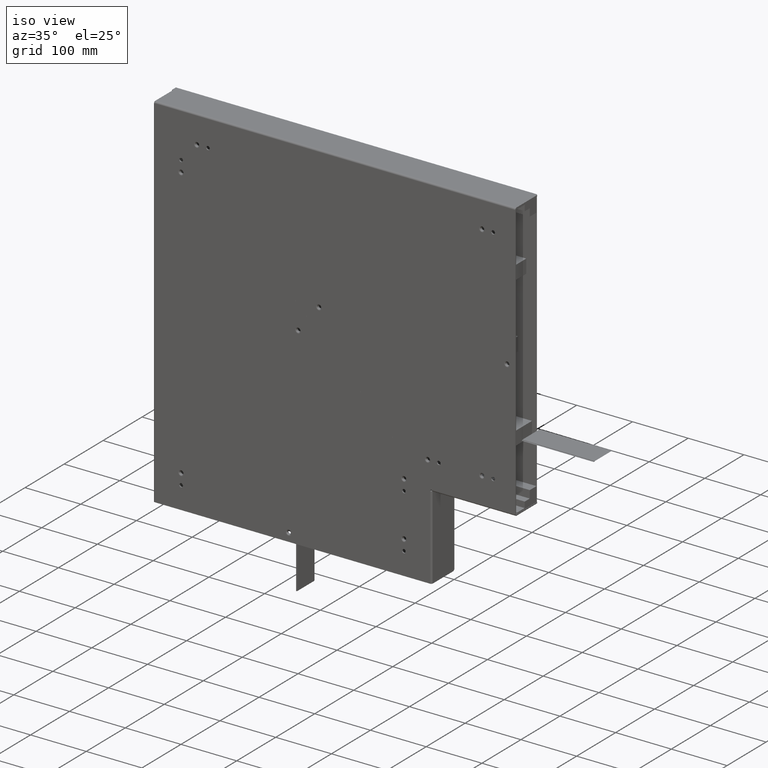
[diagram: clean part render]
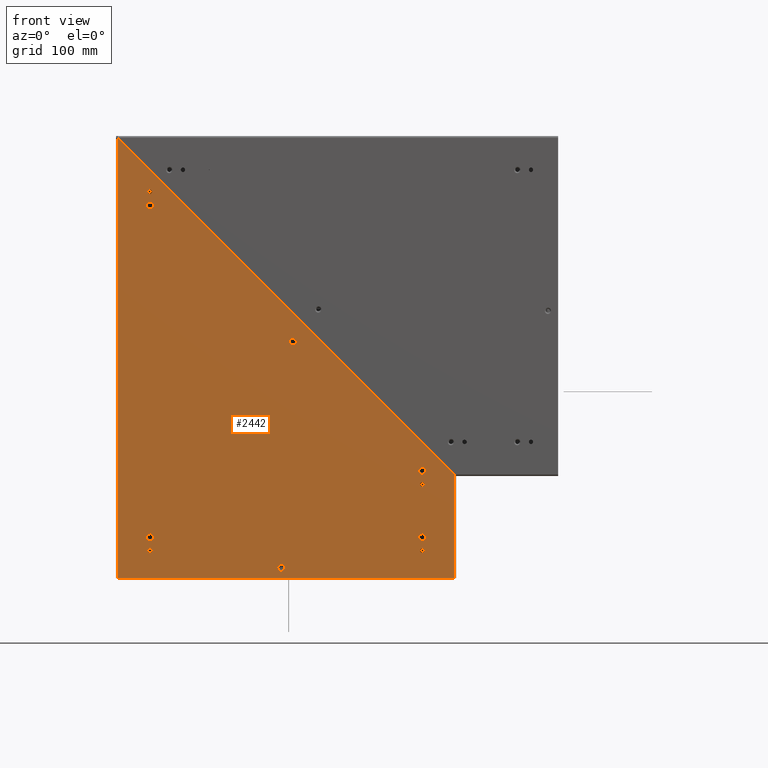
[diagram: tour spotlight — one face highlighted and labeled with its STEP entity id]
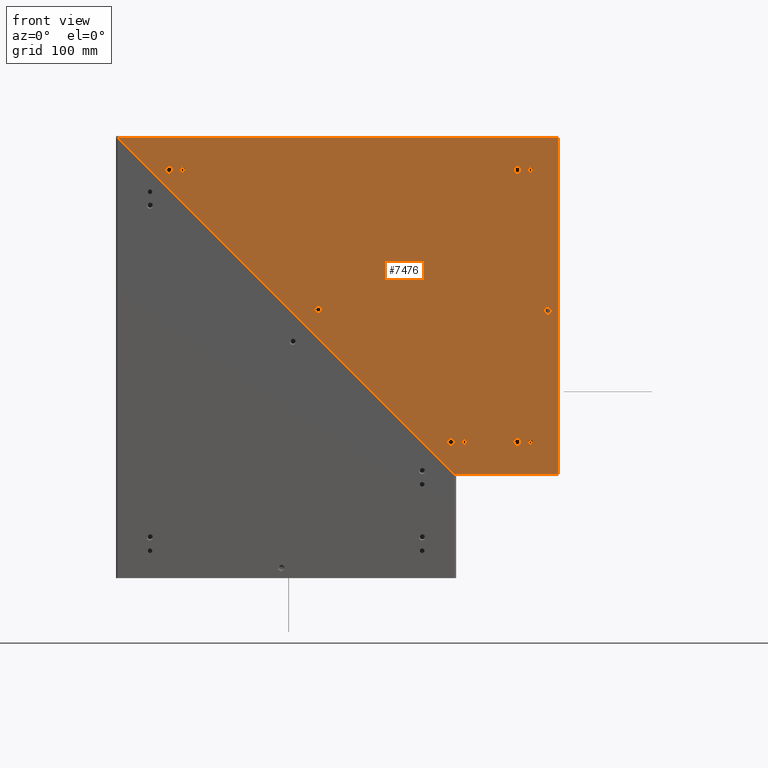
[diagram: tour spotlight — one face highlighted and labeled with its STEP entity id]
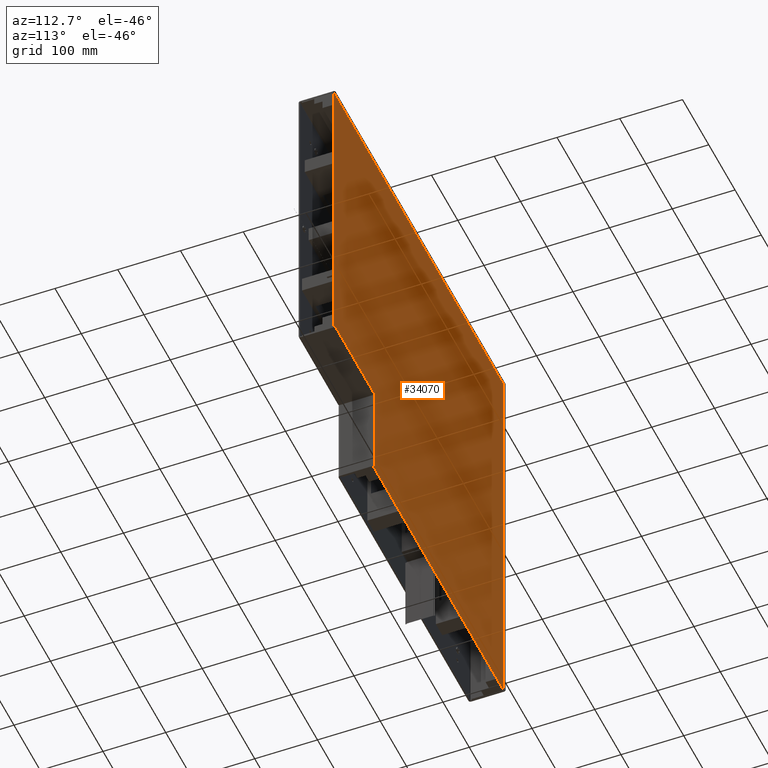
[diagram: tour spotlight — one face highlighted and labeled with its STEP entity id]
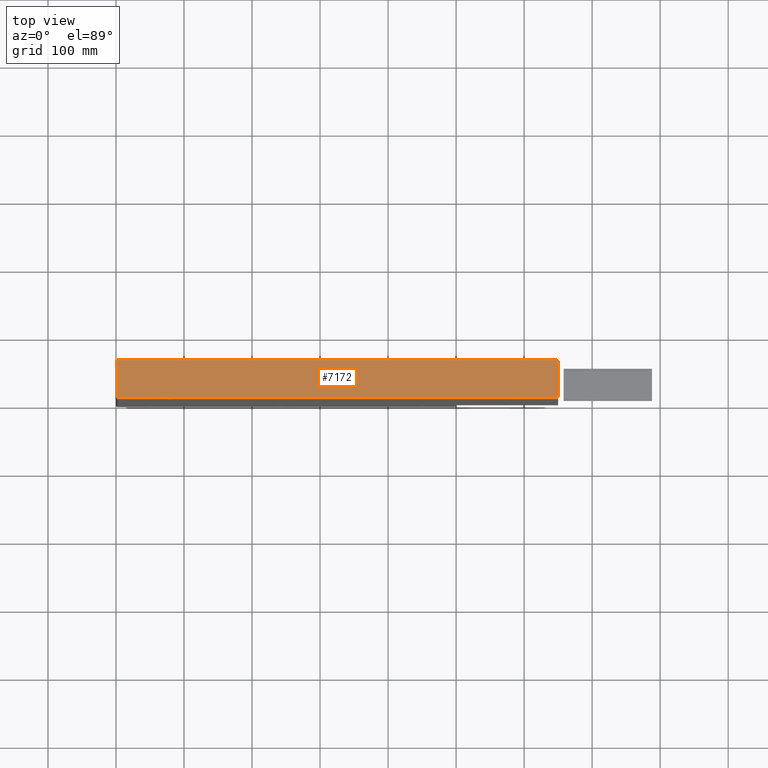
[diagram: tour spotlight — one face highlighted and labeled with its STEP entity id]
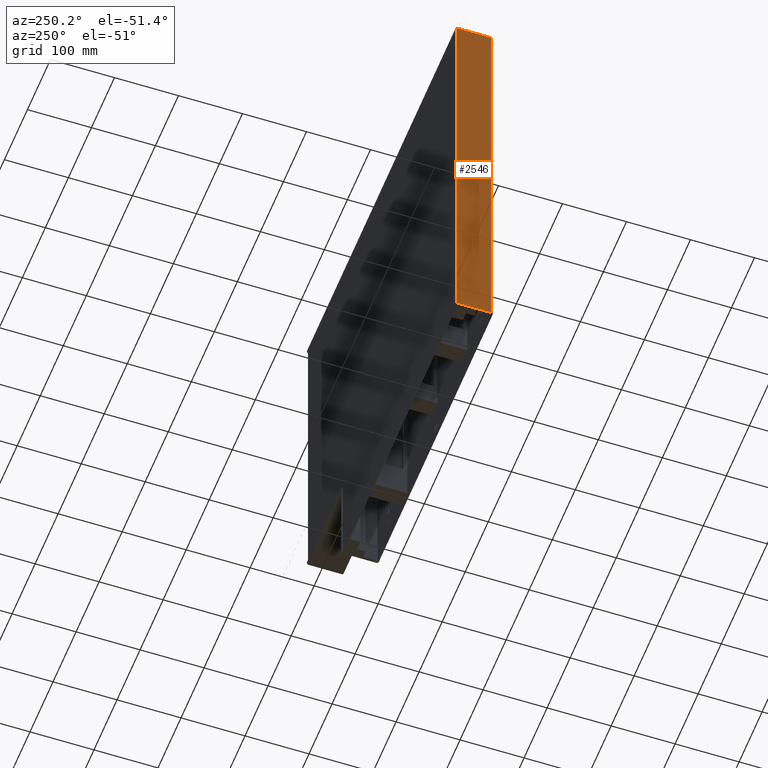
[diagram: tour spotlight — one face highlighted and labeled with its STEP entity id]
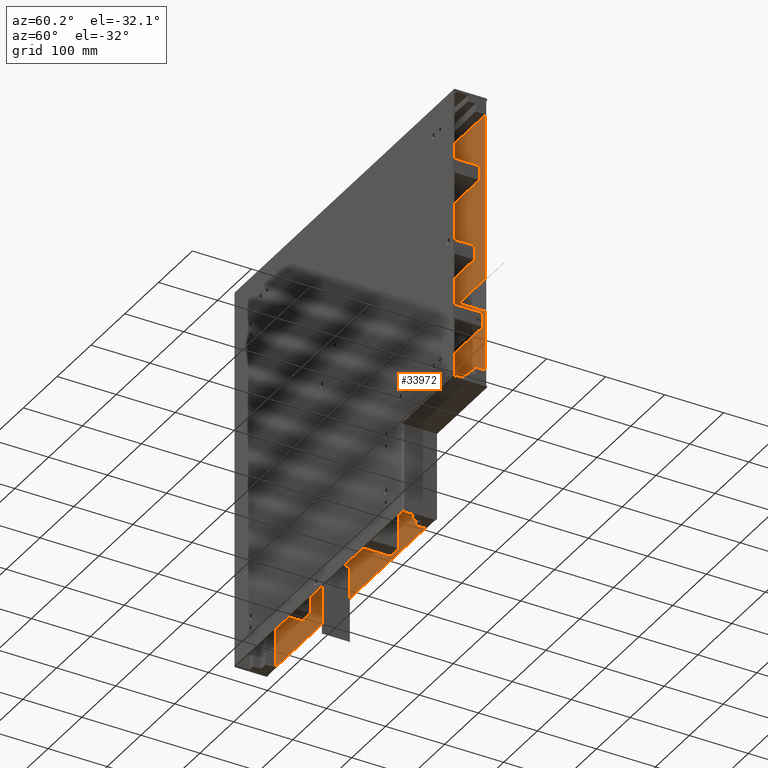
[diagram: tour spotlight — one face highlighted and labeled with its STEP entity id]
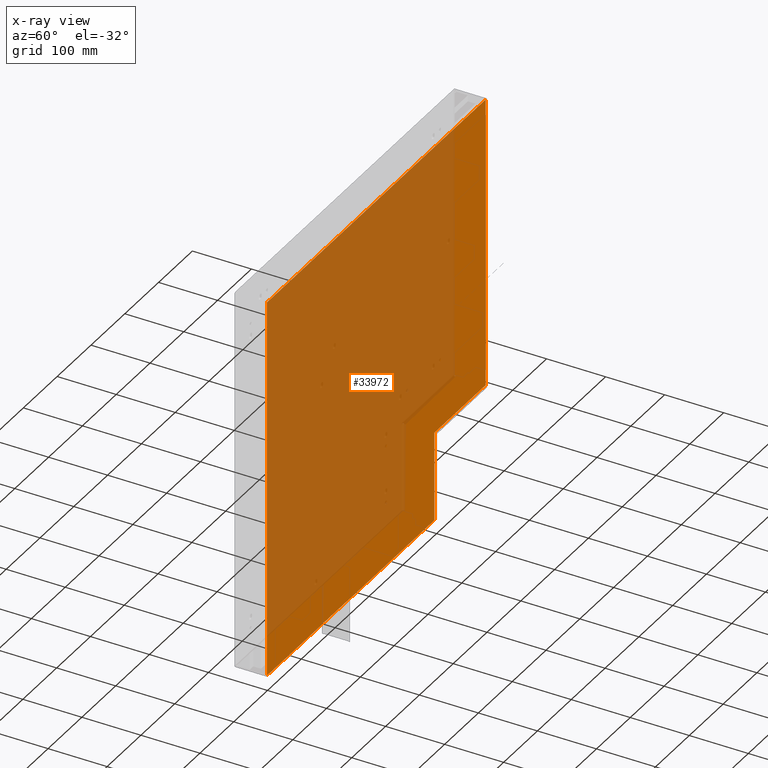
[diagram: x-ray of the same camera — body ghosted, this tour face saturated]
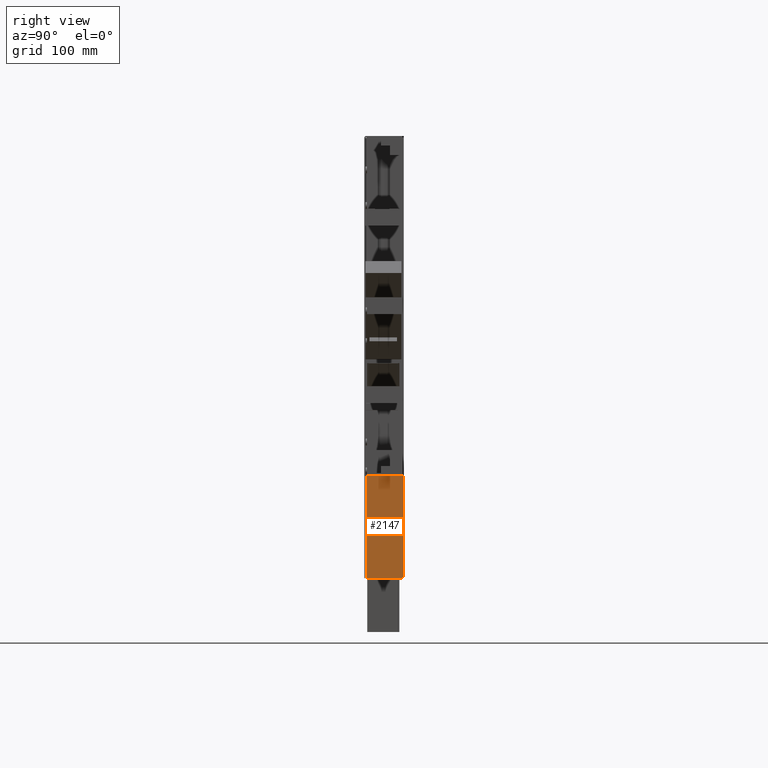
[diagram: tour spotlight — one face highlighted and labeled with its STEP entity id]
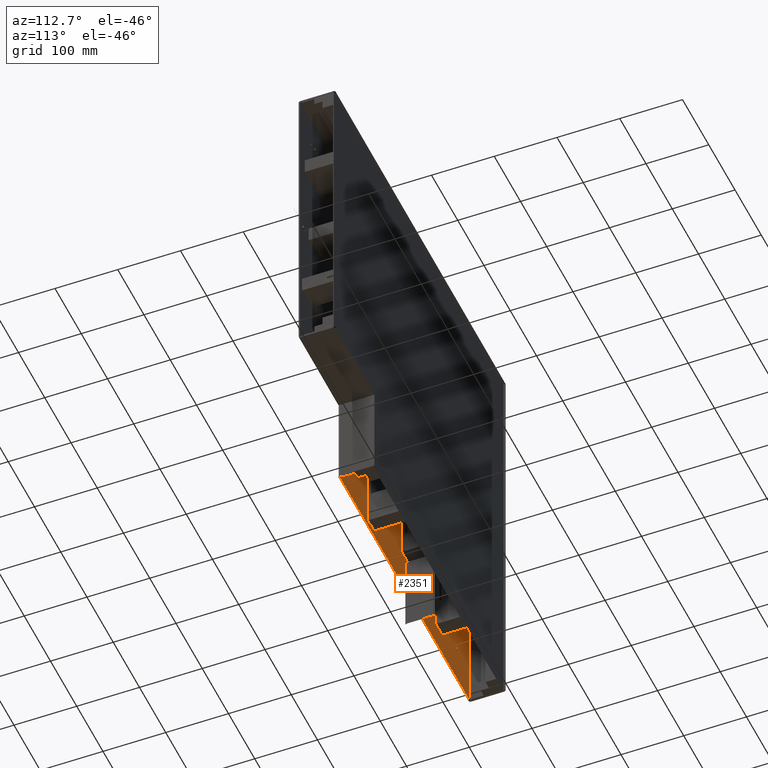
[diagram: tour spotlight — one face highlighted and labeled with its STEP entity id]
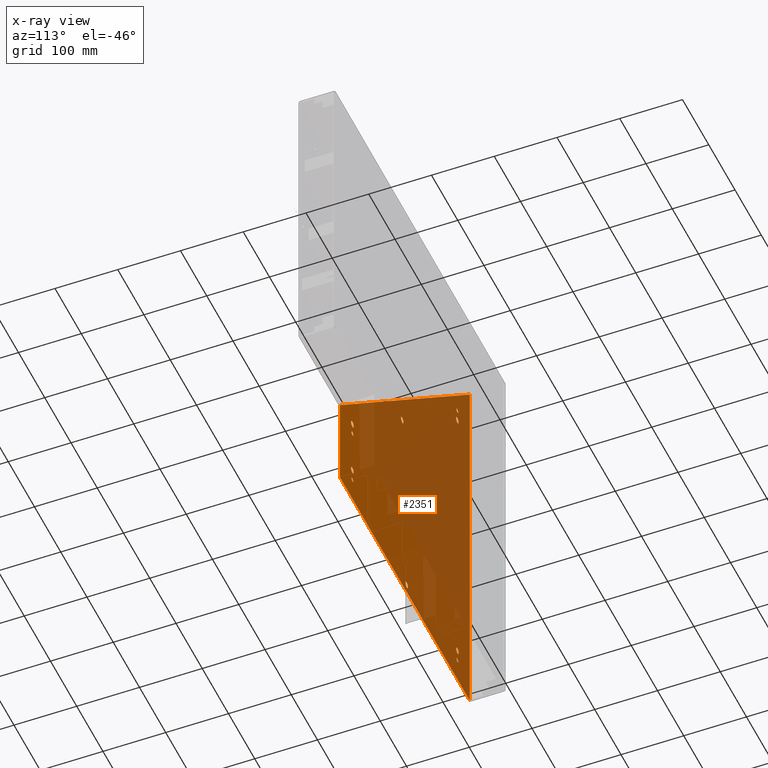
[diagram: x-ray of the same camera — body ghosted, this tour face saturated]
A machine part: a face-by-face anatomy tour. The part has 456 B-rep faces; the first image is the clean iso view, then the 8 largest visible faces are spotlighted one at a time (largest first), each with its STEP entity span.

Face 1 — front view, entity #2442. In plain terms, the highlighted planar face has unit normal (0, -1, 0).
Definition (entity closure, byte-faithful):
#302=DIRECTION('',(0.E0,0.E0,1.E0));
#303=VECTOR('',#302,1.5E2);
#304=CARTESIAN_POINT('',(2.47E2,0.E0,0.E0));
#305=LINE('',#304,#303);
#598=DIRECTION('',(7.071067811865E-1,0.E0,-7.071067811865E-1));
#599=VECTOR('',#598,6.986214998123E2);
#600=CARTESIAN_POINT('',(-2.47E2,0.E0,6.47E2));
#601=LINE('',#600,#599);
#605=DIRECTION('',(0.E0,0.E0,-1.E0));
#606=VECTOR('',#605,3.E0);
#607=CARTESIAN_POINT('',(2.47E2,0.E0,1.53E2));
#608=LINE('',#607,#606);
#612=CARTESIAN_POINT('',(2.E2,0.E0,6.E1));
#613=DIRECTION('',(0.E0,-1.E0,0.E0));
#614=DIRECTION('',(2.054153971104E-9,0.E0,-1.E0));
#615=AXIS2_PLACEMENT_3D('',#612,#613,#614);
#620=CARTESIAN_POINT('',(2.E2,0.E0,6.E1));
#621=DIRECTION('',(0.E0,-1.E0,0.E0));
#622=DIRECTION('',(-2.054153971104E-9,0.E0,1.E0));
#623=AXIS2_PLACEMENT_3D('',#620,#621,#622);
#628=CARTESIAN_POINT('',(-7.E0,0.E0,1.5E1));
#629=DIRECTION('',(0.E0,-1.E0,0.E0));
#630=DIRECTION('',(2.054154493561E-9,0.E0,-1.E0));
#631=AXIS2_PLACEMENT_3D('',#628,#629,#630);
#636=CARTESIAN_POINT('',(-7.E0,0.E0,1.5E1));
#637=DIRECTION('',(0.E0,-1.E0,0.E0));
#638=DIRECTION('',(-2.054154667714E-9,0.E0,1.E0));
#639=AXIS2_PLACEMENT_3D('',#636,#637,#638);
#644=CARTESIAN_POINT('',(-2.E2,0.E0,6.E1));
#645=DIRECTION('',(0.E0,-1.E0,0.E0));
#646=DIRECTION('',(1.E0,0.E0,2.054155364325E-9));
#647=AXIS2_PLACEMENT_3D('',#644,#645,#646);
#652=CARTESIAN_POINT('',(-2.E2,0.E0,6.E1));
#653=DIRECTION('',(0.E0,-1.E0,0.E0));
#654=DIRECTION('',(-1.E0,0.E0,-2.054155364325E-9));
#655=AXIS2_PLACEMENT_3D('',#652,#653,#654);
#660=CARTESIAN_POINT('',(-2.E2,0.E0,5.476740981922E2));
#661=DIRECTION('',(0.E0,-1.E0,0.E0));
#662=DIRECTION('',(1.E0,0.E0,2.054142825335E-9));
#663=AXIS2_PLACEMENT_3D('',#660,#661,#662);
#668=CARTESIAN_POINT('',(-2.E2,0.E0,5.476740981922E2));
#669=DIRECTION('',(0.E0,-1.E0,0.E0));
#670=DIRECTION('',(-1.E0,0.E0,-2.054142825335E-9));
#671=AXIS2_PLACEMENT_3D('',#668,#669,#670);
#676=CARTESIAN_POINT('',(1.E1,0.E0,3.475735931288E2));
#677=DIRECTION('',(0.E0,-1.E0,0.E0));
#678=DIRECTION('',(1.E0,0.E0,2.054176262640E-9));
#679=AXIS2_PLACEMENT_3D('',#676,#677,#678);
#684=CARTESIAN_POINT('',(1.E1,0.E0,3.475735931288E2));
#685=DIRECTION('',(0.E0,-1.E0,0.E0));
#686=DIRECTION('',(-1.E0,0.E0,-2.054153971104E-9));
#687=AXIS2_PLACEMENT_3D('',#684,#685,#686);
#692=CARTESIAN_POINT('',(2.E2,0.E0,1.575735931288E2));
#693=DIRECTION('',(0.E0,-1.E0,0.E0));
#694=DIRECTION('',(1.E0,0.E0,2.054153971104E-9));
#695=AXIS2_PLACEMENT_3D('',#692,#693,#694);
#700=CARTESIAN_POINT('',(2.E2,0.E0,1.575735931288E2));
#701=DIRECTION('',(0.E0,-1.E0,0.E0));
#702=DIRECTION('',(-1.E0,0.E0,-2.054148398219E-9));
#703=AXIS2_PLACEMENT_3D('',#700,#701,#702);
#708=CARTESIAN_POINT('',(-2.E2,0.E0,5.676740981922E2));
#709=DIRECTION('',(0.E0,1.E0,0.E0));
#710=DIRECTION('',(0.E0,0.E0,1.E0));
#711=AXIS2_PLACEMENT_3D('',#708,#709,#710);
#716=CARTESIAN_POINT('',(-2.E2,0.E0,5.676740981922E2));
#717=DIRECTION('',(0.E0,1.E0,0.E0));
#718=DIRECTION('',(0.E0,0.E0,-1.E0));
#719=AXIS2_PLACEMENT_3D('',#716,#717,#718);
#724=CARTESIAN_POINT('',(-2.E2,0.E0,4.E1));
#725=DIRECTION('',(0.E0,1.E0,0.E0));
#726=DIRECTION('',(0.E0,0.E0,1.E0));
#727=AXIS2_PLACEMENT_3D('',#724,#725,#726);
#732=CARTESIAN_POINT('',(-2.E2,0.E0,4.E1));
#733=DIRECTION('',(0.E0,1.E0,0.E0));
#734=DIRECTION('',(0.E0,0.E0,-1.E0));
#735=AXIS2_PLACEMENT_3D('',#732,#733,#734);
#740=CARTESIAN_POINT('',(2.E2,0.E0,4.E1));
#741=DIRECTION('',(0.E0,1.E0,0.E0));
#742=DIRECTION('',(0.E0,0.E0,1.E0));
#743=AXIS2_PLACEMENT_3D('',#740,#741,#742);
#748=CARTESIAN_POINT('',(2.E2,0.E0,4.E1));
#749=DIRECTION('',(0.E0,1.E0,0.E0));
#750=DIRECTION('',(0.E0,0.E0,-1.E0));
#751=AXIS2_PLACEMENT_3D('',#748,#749,#750);
#756=CARTESIAN_POINT('',(2.E2,0.E0,1.375735931288E2));
#757=DIRECTION('',(0.E0,1.E0,0.E0));
#758=DIRECTION('',(0.E0,0.E0,1.E0));
#759=AXIS2_PLACEMENT_3D('',#756,#757,#758);
#764=CARTESIAN_POINT('',(2.E2,0.E0,1.375735931288E2));
#765=DIRECTION('',(0.E0,1.E0,0.E0));
#766=DIRECTION('',(0.E0,0.E0,-1.E0));
#767=AXIS2_PLACEMENT_3D('',#764,#765,#766);
#793=DIRECTION('',(1.E0,0.E0,0.E0));
#794=VECTOR('',#793,4.94E2);
#795=CARTESIAN_POINT('',(-2.47E2,0.E0,0.E0));
#796=LINE('',#795,#794);
#846=DIRECTION('',(0.E0,0.E0,1.E0));
#847=VECTOR('',#846,6.47E2);
#848=CARTESIAN_POINT('',(-2.47E2,0.E0,0.E0));
#849=LINE('',#848,#847);
#1914=CARTESIAN_POINT('',(-2.47E2,0.E0,0.E0));
#1915=CARTESIAN_POINT('',(2.47E2,0.E0,0.E0));
#1916=VERTEX_POINT('',#1914);
#1917=VERTEX_POINT('',#1915);
#1926=CARTESIAN_POINT('',(2.000000000105E2,0.E0,5.49E1));
#1927=CARTESIAN_POINT('',(1.999999999895E2,0.E0,6.51E1));
#1928=VERTEX_POINT('',#1926);
#1929=VERTEX_POINT('',#1927);
#1950=CARTESIAN_POINT('',(-6.999999989524E0,0.E0,9.9E0));
#1951=CARTESIAN_POINT('',(-7.000000010476E0,0.E0,2.01E1));
#1952=VERTEX_POINT('',#1950);
#1953=VERTEX_POINT('',#1951);
#1958=CARTESIAN_POINT('',(-2.47E2,0.E0,6.47E2));
#1959=CARTESIAN_POINT('',(2.47E2,0.E0,1.53E2));
#1960=VERTEX_POINT('',#1958);
#1961=VERTEX_POINT('',#1959);
#1994=CARTESIAN_POINT('',(-1.949E2,0.E0,6.000000001048E1));
#1995=CARTESIAN_POINT('',(-2.051E2,0.E0,5.999999998952E1));
#1996=VERTEX_POINT('',#1994);
#1997=VERTEX_POINT('',#1995);
#2018=CARTESIAN_POINT('',(-1.949E2,0.E0,5.476740982027E2));
#2019=CARTESIAN_POINT('',(-2.051E2,0.E0,5.476740981817E2));
#2020=VERTEX_POINT('',#2018);
#2021=VERTEX_POINT('',#2019);
#2042=CARTESIAN_POINT('',(1.51E1,0.E0,3.475735931393E2));
#2043=CARTESIAN_POINT('',(4.9E0,0.E0,3.475735931183E2));
#2044=VERTEX_POINT('',#2042);
#2045=VERTEX_POINT('',#2043);
#2066=CARTESIAN_POINT('',(2.051E2,0.E0,1.575735931393E2));
#2067=CARTESIAN_POINT('',(1.949E2,0.E0,1.575735931183E2));
#2068=VERTEX_POINT('',#2066);
#2069=VERTEX_POINT('',#2067);
#2082=CARTESIAN_POINT('',(2.47E2,0.E0,1.5E2));
#2083=VERTEX_POINT('',#2082);
#2094=CARTESIAN_POINT('',(-2.E2,0.E0,5.709240981922E2));
#2095=CARTESIAN_POINT('',(-2.E2,0.E0,5.644240981922E2));
#2096=VERTEX_POINT('',#2094);
#2097=VERTEX_POINT('',#2095);
#2098=CARTESIAN_POINT('',(-2.E2,0.E0,4.325E1));
#2099=CARTESIAN_POINT('',(-2.E2,0.E0,3.675E1));
#2100=VERTEX_POINT('',#2098);
#2101=VERTEX_POINT('',#2099);
#2102=CARTESIAN_POINT('',(2.E2,0.E0,4.325E1));
#2103=CARTESIAN_POINT('',(2.E2,0.E0,3.675E1));
#2104=VERTEX_POINT('',#2102);
#2105=VERTEX_POINT('',#2103);
#2106=CARTESIAN_POINT('',(2.E2,0.E0,1.408235931288E2));
#2107=CARTESIAN_POINT('',(2.E2,0.E0,1.343235931288E2));
#2108=VERTEX_POINT('',#2106);
#2109=VERTEX_POINT('',#2107);
#2367=CARTESIAN_POINT('',(0.E0,0.E0,0.E0));
#2368=DIRECTION('',(0.E0,-1.E0,0.E0));
#2369=DIRECTION('',(1.E0,0.E0,0.E0));
#2370=AXIS2_PLACEMENT_3D('',#2367,#2368,#2369);
#2371=PLANE('',#2370);
#2372=ORIENTED_EDGE('',*,*,#2357,.T.);
#2374=ORIENTED_EDGE('',*,*,#2373,.T.);
#2375=ORIENTED_EDGE('',*,*,#2187,.F.);
#2377=ORIENTED_EDGE('',*,*,#2376,.F.);
#2379=ORIENTED_EDGE('',*,*,#2378,.T.);
#2380=EDGE_LOOP('',(#2372,#2374,#2375,#2377,#2379));
#2381=FACE_OUTER_BOUND('',#2380,.F.);
#2383=ORIENTED_EDGE('',*,*,#2382,.T.);
#2385=ORIENTED_EDGE('',*,*,#2384,.T.);
#2386=EDGE_LOOP('',(#2383,#2385));
#2387=FACE_BOUND('',#2386,.F.);
#2389=ORIENTED_EDGE('',*,*,#2388,.T.);
#2391=ORIENTED_EDGE('',*,*,#2390,.T.);
#2392=EDGE_LOOP('',(#2389,#2391));
#2393=FACE_BOUND('',#2392,.F.);
#2395=ORIENTED_EDGE('',*,*,#2394,.T.);
#2397=ORIENTED_EDGE('',*,*,#2396,.T.);
#2398=EDGE_LOOP('',(#2395,#2397));
#2399=FACE_BOUND('',#2398,.F.);
#2401=ORIENTED_EDGE('',*,*,#2400,.T.);
#2403=ORIENTED_EDGE('',*,*,#2402,.T.);
#2404=EDGE_LOOP('',(#2401,#2403));
#2405=FACE_BOUND('',#2404,.F.);
#2407=ORIENTED_EDGE('',*,*,#2406,.T.);
#2409=ORIENTED_EDGE('',*,*,#2408,.T.);
#2410=EDGE_LOOP('',(#2407,#2409));
#2411=FACE_BOUND('',#2410,.F.);
#2413=ORIENTED_EDGE('',*,*,#2412,.T.);
#2415=ORIENTED_EDGE('',*,*,#2414,.T.);
#2416=EDGE_LOOP('',(#2413,#2415));
#2417=FACE_BOUND('',#2416,.F.);
#2419=ORIENTED_EDGE('',*,*,#2418,.F.);
#2421=ORIENTED_EDGE('',*,*,#2420,.F.);
#2422=EDGE_LOOP('',(#2419,#2421));
#2423=FACE_BOUND('',#2422,.F.);
#2425=ORIENTED_EDGE('',*,*,#2424,.F.);
#2427=ORIENTED_EDGE('',*,*,#2426,.F.);
#2428=EDGE_LOOP('',(#2425,#2427));
#2429=FACE_BOUND('',#2428,.F.);
#2431=ORIENTED_EDGE('',*,*,#2430,.F.);
#2433=ORIENTED_EDGE('',*,*,#2432,.F.);
#2434=EDGE_LOOP('',(#2431,#2433));
#2435=FACE_BOUND('',#2434,.F.);
#2437=ORIENTED_EDGE('',*,*,#2436,.F.);
#2439=ORIENTED_EDGE('',*,*,#2438,.F.);
#2440=EDGE_LOOP('',(#2437,#2439));
#2441=FACE_BOUND('',#2440,.F.);
#616=CIRCLE('',#615,5.1E0);
#624=CIRCLE('',#623,5.1E0);
#632=CIRCLE('',#631,5.1E0);
#640=CIRCLE('',#639,5.1E0);
#648=CIRCLE('',#647,5.1E0);
#656=CIRCLE('',#655,5.1E0);
#664=CIRCLE('',#663,5.1E0);
#672=CIRCLE('',#671,5.1E0);
#680=CIRCLE('',#679,5.1E0);
#688=CIRCLE('',#687,5.1E0);
#696=CIRCLE('',#695,5.1E0);
#704=CIRCLE('',#703,5.1E0);
#712=CIRCLE('',#711,3.25E0);
#720=CIRCLE('',#719,3.25E0);
#728=CIRCLE('',#727,3.25E0);
#736=CIRCLE('',#735,3.25E0);
#744=CIRCLE('',#743,3.25E0);
#752=CIRCLE('',#751,3.25E0);
#760=CIRCLE('',#759,3.25E0);
#768=CIRCLE('',#767,3.25E0);
#2187=EDGE_CURVE('',#1917,#2083,#305,.T.);
#2357=EDGE_CURVE('',#1960,#1961,#601,.T.);
#2373=EDGE_CURVE('',#1961,#2083,#608,.T.);
#2376=EDGE_CURVE('',#1916,#1917,#796,.T.);
#2378=EDGE_CURVE('',#1916,#1960,#849,.T.);
#2382=EDGE_CURVE('',#1928,#1929,#616,.T.);
#2384=EDGE_CURVE('',#1929,#1928,#624,.T.);
#2388=EDGE_CURVE('',#1952,#1953,#632,.T.);
#2390=EDGE_CURVE('',#1953,#1952,#640,.T.);
#2394=EDGE_CURVE('',#1996,#1997,#648,.T.);
#2396=EDGE_CURVE('',#1997,#1996,#656,.T.);
#2400=EDGE_CURVE('',#2020,#2021,#664,.T.);
#2402=EDGE_CURVE('',#2021,#2020,#672,.T.);
#2406=EDGE_CURVE('',#2044,#2045,#680,.T.);
#2408=EDGE_CURVE('',#2045,#2044,#688,.T.);
#2412=EDGE_CURVE('',#2068,#2069,#696,.T.);
#2414=EDGE_CURVE('',#2069,#2068,#704,.T.);
#2418=EDGE_CURVE('',#2096,#2097,#712,.T.);
#2420=EDGE_CURVE('',#2097,#2096,#720,.T.);
#2424=EDGE_CURVE('',#2100,#2101,#728,.T.);
#2426=EDGE_CURVE('',#2101,#2100,#736,.T.);
#2430=EDGE_CURVE('',#2104,#2105,#744,.T.);
#2432=EDGE_CURVE('',#2105,#2104,#752,.T.);
#2436=EDGE_CURVE('',#2108,#2109,#760,.T.);
#2438=EDGE_CURVE('',#2109,#2108,#768,.T.);
#2442=ADVANCED_FACE('',(#2381,#2387,#2393,#2399,#2405,#2411,#2417,#2423,#2429,
#2435,#2441),#2371,.T.);

Face 2 — front view, entity #7476. In plain terms, the highlighted planar face has unit normal (0, -1, 0).
Definition (entity closure, byte-faithful):
#5026=DIRECTION('',(0.E0,0.E0,1.E0));
#5027=VECTOR('',#5026,6.47E2);
#5028=CARTESIAN_POINT('',(2.47E2,0.E0,0.E0));
#5029=LINE('',#5028,#5027);
#5213=DIRECTION('',(7.071067811865E-1,0.E0,7.071067811865E-1));
#5214=VECTOR('',#5213,6.986214998123E2);
#5215=CARTESIAN_POINT('',(-2.47E2,0.E0,1.53E2));
#5216=LINE('',#5215,#5214);
#5220=DIRECTION('',(0.E0,0.E0,1.E0));
#5221=VECTOR('',#5220,3.E0);
#5222=CARTESIAN_POINT('',(-2.47E2,0.E0,1.5E2));
#5223=LINE('',#5222,#5221);
#5227=CARTESIAN_POINT('',(2.E2,0.E0,6.E1));
#5228=DIRECTION('',(0.E0,-1.E0,0.E0));
#5229=DIRECTION('',(2.054153971104E-9,0.E0,-1.E0));
#5230=AXIS2_PLACEMENT_3D('',#5227,#5228,#5229);
#5235=CARTESIAN_POINT('',(2.E2,0.E0,6.E1));
#5236=DIRECTION('',(0.E0,-1.E0,0.E0));
#5237=DIRECTION('',(-2.054153971104E-9,0.E0,1.E0));
#5238=AXIS2_PLACEMENT_3D('',#5235,#5236,#5237);
#5243=CARTESIAN_POINT('',(-7.E0,0.E0,1.5E1));
#5244=DIRECTION('',(0.E0,-1.E0,0.E0));
#5245=DIRECTION('',(2.054154493561E-9,0.E0,-1.E0));
#5246=AXIS2_PLACEMENT_3D('',#5243,#5244,#5245);
#5251=CARTESIAN_POINT('',(-7.E0,0.E0,1.5E1));
#5252=DIRECTION('',(0.E0,-1.E0,0.E0));
#5253=DIRECTION('',(-2.054154667714E-9,0.E0,1.E0));
#5254=AXIS2_PLACEMENT_3D('',#5251,#5252,#5253);
#5259=CARTESIAN_POINT('',(-2.E2,0.E0,6.E1));
#5260=DIRECTION('',(0.E0,-1.E0,0.E0));
#5261=DIRECTION('',(1.E0,0.E0,2.054155364325E-9));
#5262=AXIS2_PLACEMENT_3D('',#5259,#5260,#5261);
#5267=CARTESIAN_POINT('',(-2.E2,0.E0,6.E1));
#5268=DIRECTION('',(0.E0,-1.E0,0.E0));
#5269=DIRECTION('',(-1.E0,0.E0,-2.054155364325E-9));
#5270=AXIS2_PLACEMENT_3D('',#5267,#5268,#5269);
#5275=CARTESIAN_POINT('',(-2.E2,0.E0,1.575735931288E2));
#5276=DIRECTION('',(0.E0,-1.E0,0.E0));
#5277=DIRECTION('',(1.E0,0.E0,2.054153971104E-9));
#5278=AXIS2_PLACEMENT_3D('',#5275,#5276,#5277);
#5283=CARTESIAN_POINT('',(-2.E2,0.E0,1.575735931288E2));
#5284=DIRECTION('',(0.E0,-1.E0,0.E0));
#5285=DIRECTION('',(-1.E0,0.E0,-2.054148398219E-9));
#5286=AXIS2_PLACEMENT_3D('',#5283,#5284,#5285);
#5291=CARTESIAN_POINT('',(-5.E0,0.E0,3.525735931288E2));
#5292=DIRECTION('',(0.E0,-1.E0,0.E0));
#5293=DIRECTION('',(1.E0,0.E0,2.054165116872E-9));
#5294=AXIS2_PLACEMENT_3D('',#5291,#5292,#5293);
#5299=CARTESIAN_POINT('',(-5.E0,0.E0,3.525735931288E2));
#5300=DIRECTION('',(0.E0,-1.E0,0.E0));
#5301=DIRECTION('',(-1.E0,0.E0,-2.054153971104E-9));
#5302=AXIS2_PLACEMENT_3D('',#5299,#5300,#5301);
#5307=CARTESIAN_POINT('',(2.E2,0.E0,5.717157287525E2));
#5308=DIRECTION('',(0.E0,-1.E0,0.E0));
#5309=DIRECTION('',(1.E0,0.E0,2.054142825335E-9));
#5310=AXIS2_PLACEMENT_3D('',#5307,#5308,#5309);
#5315=CARTESIAN_POINT('',(2.E2,0.E0,5.717157287525E2));
#5316=DIRECTION('',(0.E0,-1.E0,0.E0));
#5317=DIRECTION('',(-1.E0,0.E0,-2.054142825335E-9));
#5318=AXIS2_PLACEMENT_3D('',#5315,#5316,#5317);
#5323=CARTESIAN_POINT('',(2.E2,0.E0,5.517157287525E2));
#5324=DIRECTION('',(0.E0,1.E0,0.E0));
#5325=DIRECTION('',(0.E0,0.E0,1.E0));
#5326=AXIS2_PLACEMENT_3D('',#5323,#5324,#5325);
#5331=CARTESIAN_POINT('',(2.E2,0.E0,5.517157287525E2));
#5332=DIRECTION('',(0.E0,1.E0,0.E0));
#5333=DIRECTION('',(0.E0,0.E0,-1.E0));
#5334=AXIS2_PLACEMENT_3D('',#5331,#5332,#5333);
#5339=CARTESIAN_POINT('',(2.E2,0.E0,4.E1));
#5340=DIRECTION('',(0.E0,1.E0,0.E0));
#5341=DIRECTION('',(0.E0,0.E0,1.E0));
#5342=AXIS2_PLACEMENT_3D('',#5339,#5340,#5341);
#5347=CARTESIAN_POINT('',(2.E2,0.E0,4.E1));
#5348=DIRECTION('',(0.E0,1.E0,0.E0));
#5349=DIRECTION('',(0.E0,0.E0,-1.E0));
#5350=AXIS2_PLACEMENT_3D('',#5347,#5348,#5349);
#5355=CARTESIAN_POINT('',(-2.E2,0.E0,4.E1));
#5356=DIRECTION('',(0.E0,1.E0,0.E0));
#5357=DIRECTION('',(0.E0,0.E0,1.E0));
#5358=AXIS2_PLACEMENT_3D('',#5355,#5356,#5357);
#5363=CARTESIAN_POINT('',(-2.E2,0.E0,4.E1));
#5364=DIRECTION('',(0.E0,1.E0,0.E0));
#5365=DIRECTION('',(0.E0,0.E0,-1.E0));
#5366=AXIS2_PLACEMENT_3D('',#5363,#5364,#5365);
#5371=CARTESIAN_POINT('',(-2.E2,0.E0,1.375735931288E2));
#5372=DIRECTION('',(0.E0,1.E0,0.E0));
#5373=DIRECTION('',(0.E0,0.E0,1.E0));
#5374=AXIS2_PLACEMENT_3D('',#5371,#5372,#5373);
#5379=CARTESIAN_POINT('',(-2.E2,0.E0,1.375735931288E2));
#5380=DIRECTION('',(0.E0,1.E0,0.E0));
#5381=DIRECTION('',(0.E0,0.E0,-1.E0));
#5382=AXIS2_PLACEMENT_3D('',#5379,#5380,#5381);
#5387=CARTESIAN_POINT('',(2.E2,0.E0,9.3E1));
#5388=DIRECTION('',(0.E0,1.E0,0.E0));
#5389=DIRECTION('',(0.E0,0.E0,-1.E0));
#5390=AXIS2_PLACEMENT_3D('',#5387,#5388,#5389);
#5395=CARTESIAN_POINT('',(2.E2,0.E0,9.3E1));
#5396=DIRECTION('',(0.E0,1.E0,0.E0));
#5397=DIRECTION('',(0.E0,0.E0,1.E0));
#5398=AXIS2_PLACEMENT_3D('',#5395,#5396,#5397);
#5403=CARTESIAN_POINT('',(2.E2,0.E0,5.13E2));
#5404=DIRECTION('',(0.E0,1.E0,0.E0));
#5405=DIRECTION('',(0.E0,0.E0,-1.E0));
#5406=AXIS2_PLACEMENT_3D('',#5403,#5404,#5405);
#5411=CARTESIAN_POINT('',(2.E2,0.E0,5.13E2));
#5412=DIRECTION('',(0.E0,1.E0,0.E0));
#5413=DIRECTION('',(0.E0,0.E0,1.E0));
#5414=AXIS2_PLACEMENT_3D('',#5411,#5412,#5413);
#5419=CARTESIAN_POINT('',(-2.5E1,0.E0,3.255025253169E2));
#5420=DIRECTION('',(0.E0,1.E0,0.E0));
#5421=DIRECTION('',(0.E0,0.E0,-1.E0));
#5422=AXIS2_PLACEMENT_3D('',#5419,#5420,#5421);
#5427=CARTESIAN_POINT('',(-2.5E1,0.E0,3.255025253169E2));
#5428=DIRECTION('',(0.E0,1.E0,0.E0));
#5429=DIRECTION('',(0.E0,0.E0,1.E0));
#5430=AXIS2_PLACEMENT_3D('',#5427,#5428,#5429);
#5435=CARTESIAN_POINT('',(-2.E2,0.E0,9.3E1));
#5436=DIRECTION('',(0.E0,1.E0,0.E0));
#5437=DIRECTION('',(0.E0,0.E0,-1.E0));
#5438=AXIS2_PLACEMENT_3D('',#5435,#5436,#5437);
#5443=CARTESIAN_POINT('',(-2.E2,0.E0,9.3E1));
#5444=DIRECTION('',(0.E0,1.E0,0.E0));
#5445=DIRECTION('',(0.E0,0.E0,1.E0));
#5446=AXIS2_PLACEMENT_3D('',#5443,#5444,#5445);
#5465=DIRECTION('',(1.E0,0.E0,0.E0));
#5466=VECTOR('',#5465,4.94E2);
#5467=CARTESIAN_POINT('',(-2.47E2,0.E0,0.E0));
#5468=LINE('',#5467,#5466);
#5739=DIRECTION('',(0.E0,0.E0,1.E0));
#5740=VECTOR('',#5739,1.5E2);
#5741=CARTESIAN_POINT('',(-2.47E2,0.E0,0.E0));
#5742=LINE('',#5741,#5740);
#6885=CARTESIAN_POINT('',(-2.47E2,0.E0,0.E0));
#6886=CARTESIAN_POINT('',(2.47E2,0.E0,0.E0));
#6887=VERTEX_POINT('',#6885);
#6888=VERTEX_POINT('',#6886);
#6897=CARTESIAN_POINT('',(2.000000000105E2,0.E0,5.49E1));
#6898=CARTESIAN_POINT('',(1.999999999895E2,0.E0,6.51E1));
#6899=VERTEX_POINT('',#6897);
#6900=VERTEX_POINT('',#6898);
#6921=CARTESIAN_POINT('',(-6.999999989524E0,0.E0,9.9E0));
#6922=CARTESIAN_POINT('',(-7.000000010476E0,0.E0,2.01E1));
#6923=VERTEX_POINT('',#6921);
#6924=VERTEX_POINT('',#6922);
#6929=CARTESIAN_POINT('',(-2.47E2,0.E0,1.53E2));
#6930=CARTESIAN_POINT('',(2.47E2,0.E0,6.47E2));
#6931=VERTEX_POINT('',#6929);
#6932=VERTEX_POINT('',#6930);
#6953=CARTESIAN_POINT('',(-1.949E2,0.E0,6.000000001048E1));
#6954=CARTESIAN_POINT('',(-2.051E2,0.E0,5.999999998952E1));
#6955=VERTEX_POINT('',#6953);
#6956=VERTEX_POINT('',#6954);
#6977=CARTESIAN_POINT('',(-1.949E2,0.E0,1.575735931393E2));
#6978=CARTESIAN_POINT('',(-2.051E2,0.E0,1.575735931183E2));
#6979=VERTEX_POINT('',#6977);
#6980=VERTEX_POINT('',#6978);
#7001=CARTESIAN_POINT('',(1.E-1,0.E0,3.525735931393E2));
#7002=CARTESIAN_POINT('',(-1.01E1,0.E0,3.525735931183E2));
#7003=VERTEX_POINT('',#7001);
#7004=VERTEX_POINT('',#7002);
#7025=CARTESIAN_POINT('',(2.051E2,0.E0,5.717157287630E2));
#7026=CARTESIAN_POINT('',(1.949E2,0.E0,5.717157287421E2));
#7027=VERTEX_POINT('',#7025);
#7028=VERTEX_POINT('',#7026);
#7041=CARTESIAN_POINT('',(-2.47E2,0.E0,1.5E2));
#7042=VERTEX_POINT('',#7041);
#7061=CARTESIAN_POINT('',(2.E2,0.E0,5.549657287525E2));
#7062=CARTESIAN_POINT('',(2.E2,0.E0,5.484657287525E2));
#7063=VERTEX_POINT('',#7061);
#7064=VERTEX_POINT('',#7062);
#7065=CARTESIAN_POINT('',(2.E2,0.E0,4.325E1));
#7066=CARTESIAN_POINT('',(2.E2,0.E0,3.675E1));
#7067=VERTEX_POINT('',#7065);
#7068=VERTEX_POINT('',#7066);
#7069=CARTESIAN_POINT('',(-2.E2,0.E0,4.325E1));
#7070=CARTESIAN_POINT('',(-2.E2,0.E0,3.675E1));
#7071=VERTEX_POINT('',#7069);
#7072=VERTEX_POINT('',#7070);
#7073=CARTESIAN_POINT('',(-2.E2,0.E0,1.408235931288E2));
#7074=CARTESIAN_POINT('',(-2.E2,0.E0,1.343235931288E2));
#7075=VERTEX_POINT('',#7073);
#7076=VERTEX_POINT('',#7074);
#7117=CARTESIAN_POINT('',(2.E2,0.E0,9.295E1));
#7118=CARTESIAN_POINT('',(2.E2,0.E0,9.305E1));
#7119=VERTEX_POINT('',#7117);
#7120=VERTEX_POINT('',#7118);
#7121=CARTESIAN_POINT('',(2.E2,0.E0,5.1295E2));
#7122=CARTESIAN_POINT('',(2.E2,0.E0,5.1305E2));
#7123=VERTEX_POINT('',#7121);
#7124=VERTEX_POINT('',#7122);
#7125=CARTESIAN_POINT('',(-2.5E1,0.E0,3.254525253169E2));
#7126=CARTESIAN_POINT('',(-2.5E1,0.E0,3.255525253169E2));
#7127=VERTEX_POINT('',#7125);
#7128=VERTEX_POINT('',#7126);
#7129=CARTESIAN_POINT('',(-2.E2,0.E0,9.295E1));
#7130=CARTESIAN_POINT('',(-2.E2,0.E0,9.305E1));
#7131=VERTEX_POINT('',#7129);
#7132=VERTEX_POINT('',#7130);
#7377=CARTESIAN_POINT('',(0.E0,0.E0,0.E0));
#7378=DIRECTION('',(0.E0,-1.E0,0.E0));
#7379=DIRECTION('',(1.E0,0.E0,0.E0));
#7380=AXIS2_PLACEMENT_3D('',#7377,#7378,#7379);
#7381=PLANE('',#7380);
#7382=ORIENTED_EDGE('',*,*,#7367,.T.);
#7383=ORIENTED_EDGE('',*,*,#7212,.F.);
#7385=ORIENTED_EDGE('',*,*,#7384,.F.);
#7387=ORIENTED_EDGE('',*,*,#7386,.T.);
#7389=ORIENTED_EDGE('',*,*,#7388,.T.);
#7390=EDGE_LOOP('',(#7382,#7383,#7385,#7387,#7389));
#7391=FACE_OUTER_BOUND('',#7390,.F.);
#7393=ORIENTED_EDGE('',*,*,#7392,.T.);
#7395=ORIENTED_EDGE('',*,*,#7394,.T.);
#7396=EDGE_LOOP('',(#7393,#7395));
#7397=FACE_BOUND('',#7396,.F.);
#7399=ORIENTED_EDGE('',*,*,#7398,.T.);
#7401=ORIENTED_EDGE('',*,*,#7400,.T.);
#7402=EDGE_LOOP('',(#7399,#7401));
#7403=FACE_BOUND('',#7402,.F.);
#7405=ORIENTED_EDGE('',*,*,#7404,.T.);
#7407=ORIENTED_EDGE('',*,*,#7406,.T.);
#7408=EDGE_LOOP('',(#7405,#7407));
#7409=FACE_BOUND('',#7408,.F.);
#7411=ORIENTED_EDGE('',*,*,#7410,.T.);
#7413=ORIENTED_EDGE('',*,*,#7412,.T.);
#7414=EDGE_LOOP('',(#7411,#7413));
#7415=FACE_BOUND('',#7414,.F.);
#7417=ORIENTED_EDGE('',*,*,#7416,.T.);
#7419=ORIENTED_EDGE('',*,*,#7418,.T.);
#7420=EDGE_LOOP('',(#7417,#7419));
#7421=FACE_BOUND('',#7420,.F.);
#7423=ORIENTED_EDGE('',*,*,#7422,.T.);
#7425=ORIENTED_EDGE('',*,*,#7424,.T.);
#7426=EDGE_LOOP('',(#7423,#7425));
#7427=FACE_BOUND('',#7426,.F.);
#7429=ORIENTED_EDGE('',*,*,#7428,.F.);
#7431=ORIENTED_EDGE('',*,*,#7430,.F.);
#7432=EDGE_LOOP('',(#7429,#7431));
#7433=FACE_BOUND('',#7432,.F.);
#7435=ORIENTED_EDGE('',*,*,#7434,.F.);
#7437=ORIENTED_EDGE('',*,*,#7436,.F.);
#7438=EDGE_LOOP('',(#7435,#7437));
#7439=FACE_BOUND('',#7438,.F.);
#7441=ORIENTED_EDGE('',*,*,#7440,.F.);
#7443=ORIENTED_EDGE('',*,*,#7442,.F.);
#7444=EDGE_LOOP('',(#7441,#7443));
#7445=FACE_BOUND('',#7444,.F.);
#7447=ORIENTED_EDGE('',*,*,#7446,.F.);
#7449=ORIENTED_EDGE('',*,*,#7448,.F.);
#7450=EDGE_LOOP('',(#7447,#7449));
#7451=FACE_BOUND('',#7450,.F.);
#7453=ORIENTED_EDGE('',*,*,#7452,.F.);
#7455=ORIENTED_EDGE('',*,*,#7454,.F.);
#7456=EDGE_LOOP('',(#7453,#7455));
#7457=FACE_BOUND('',#7456,.F.);
#7459=ORIENTED_EDGE('',*,*,#7458,.F.);
#7461=ORIENTED_EDGE('',*,*,#7460,.F.);
#7462=EDGE_LOOP('',(#7459,#7461));
#7463=FACE_BOUND('',#7462,.F.);
#7465=ORIENTED_EDGE('',*,*,#7464,.F.);
#7467=ORIENTED_EDGE('',*,*,#7466,.F.);
#7468=EDGE_LOOP('',(#7465,#7467));
#7469=FACE_BOUND('',#7468,.F.);
#7471=ORIENTED_EDGE('',*,*,#7470,.F.);
#7473=ORIENTED_EDGE('',*,*,#7472,.F.);
#7474=EDGE_LOOP('',(#7471,#7473));
#7475=FACE_BOUND('',#7474,.F.);
#5231=CIRCLE('',#5230,5.1E0);
#5239=CIRCLE('',#5238,5.1E0);
#5247=CIRCLE('',#5246,5.1E0);
#5255=CIRCLE('',#5254,5.1E0);
#5263=CIRCLE('',#5262,5.1E0);
#5271=CIRCLE('',#5270,5.1E0);
#5279=CIRCLE('',#5278,5.1E0);
#5287=CIRCLE('',#5286,5.1E0);
#5295=CIRCLE('',#5294,5.1E0);
#5303=CIRCLE('',#5302,5.1E0);
#5311=CIRCLE('',#5310,5.1E0);
#5319=CIRCLE('',#5318,5.1E0);
#5327=CIRCLE('',#5326,3.25E0);
#5335=CIRCLE('',#5334,3.25E0);
#5343=CIRCLE('',#5342,3.25E0);
#5351=CIRCLE('',#5350,3.25E0);
#5359=CIRCLE('',#5358,3.25E0);
#5367=CIRCLE('',#5366,3.25E0);
#5375=CIRCLE('',#5374,3.25E0);
#5383=CIRCLE('',#5382,3.25E0);
#5391=CIRCLE('',#5390,5.E-2);
#5399=CIRCLE('',#5398,5.E-2);
#5407=CIRCLE('',#5406,5.E-2);
#5415=CIRCLE('',#5414,5.E-2);
#5423=CIRCLE('',#5422,5.E-2);
#5431=CIRCLE('',#5430,5.E-2);
#5439=CIRCLE('',#5438,5.E-2);
#5447=CIRCLE('',#5446,5.E-2);
#7212=EDGE_CURVE('',#6888,#6932,#5029,.T.);
#7367=EDGE_CURVE('',#6931,#6932,#5216,.T.);
#7384=EDGE_CURVE('',#6887,#6888,#5468,.T.);
#7386=EDGE_CURVE('',#6887,#7042,#5742,.T.);
#7388=EDGE_CURVE('',#7042,#6931,#5223,.T.);
#7392=EDGE_CURVE('',#6899,#6900,#5231,.T.);
#7394=EDGE_CURVE('',#6900,#6899,#5239,.T.);
#7398=EDGE_CURVE('',#6923,#6924,#5247,.T.);
#7400=EDGE_CURVE('',#6924,#6923,#5255,.T.);
#7404=EDGE_CURVE('',#6955,#6956,#5263,.T.);
#7406=EDGE_CURVE('',#6956,#6955,#5271,.T.);
#7410=EDGE_CURVE('',#6979,#6980,#5279,.T.);
#7412=EDGE_CURVE('',#6980,#6979,#5287,.T.);
#7416=EDGE_CURVE('',#7003,#7004,#5295,.T.);
#7418=EDGE_CURVE('',#7004,#7003,#5303,.T.);
#7422=EDGE_CURVE('',#7027,#7028,#5311,.T.);
#7424=EDGE_CURVE('',#7028,#7027,#5319,.T.);
#7428=EDGE_CURVE('',#7063,#7064,#5327,.T.);
#7430=EDGE_CURVE('',#7064,#7063,#5335,.T.);
#7434=EDGE_CURVE('',#7067,#7068,#5343,.T.);
#7436=EDGE_CURVE('',#7068,#7067,#5351,.T.);
#7440=EDGE_CURVE('',#7071,#7072,#5359,.T.);
#7442=EDGE_CURVE('',#7072,#7071,#5367,.T.);
#7446=EDGE_CURVE('',#7075,#7076,#5375,.T.);
#7448=EDGE_CURVE('',#7076,#7075,#5383,.T.);
#7452=EDGE_CURVE('',#7119,#7120,#5391,.T.);
#7454=EDGE_CURVE('',#7120,#7119,#5399,.T.);
#7458=EDGE_CURVE('',#7123,#7124,#5407,.T.);
#7460=EDGE_CURVE('',#7124,#7123,#5415,.T.);
#7464=EDGE_CURVE('',#7127,#7128,#5423,.T.);
#7466=EDGE_CURVE('',#7128,#7127,#5431,.T.);
#7470=EDGE_CURVE('',#7131,#7132,#5439,.T.);
#7472=EDGE_CURVE('',#7132,#7131,#5447,.T.);
#7476=ADVANCED_FACE('',(#7391,#7397,#7403,#7409,#7415,#7421,#7427,#7433,#7439,
#7445,#7451,#7457,#7463,#7469,#7475),#7381,.T.);

Face 3 — auxiliary view, entity #34070. In plain terms, the highlighted planar face has unit normal (0, 1, 0).
Definition (entity closure, byte-faithful):
#33887=DIRECTION('',(1.E0,0.E0,0.E0));
#33888=VECTOR('',#33887,6.473E2);
#33889=CARTESIAN_POINT('',(-3.995E2,-2.478E2,1.E0));
#33890=LINE('',#33889,#33888);
#33894=DIRECTION('',(0.E0,-1.E0,0.E0));
#33895=VECTOR('',#33894,4.956E2);
#33896=CARTESIAN_POINT('',(-3.995E2,2.478E2,1.E0));
#33897=LINE('',#33896,#33895);
#33901=DIRECTION('',(-1.E0,0.E0,0.E0));
#33902=VECTOR('',#33901,1.517E2);
#33903=CARTESIAN_POINT('',(-2.478E2,2.478E2,1.E0));
#33904=LINE('',#33903,#33902);
#33908=DIRECTION('',(0.E0,-1.E0,0.E0));
#33909=VECTOR('',#33908,1.517E2);
#33910=CARTESIAN_POINT('',(-2.478E2,3.995E2,1.E0));
#33911=LINE('',#33910,#33909);
#33915=DIRECTION('',(-1.E0,0.E0,0.E0));
#33916=VECTOR('',#33915,4.956E2);
#33917=CARTESIAN_POINT('',(2.478E2,3.995E2,1.E0));
#33918=LINE('',#33917,#33916);
#33922=DIRECTION('',(0.E0,1.E0,0.E0));
#33923=VECTOR('',#33922,6.473E2);
#33924=CARTESIAN_POINT('',(2.478E2,-2.478E2,1.E0));
#33925=LINE('',#33924,#33923);
#33939=CARTESIAN_POINT('',(-3.995E2,-2.478E2,1.E0));
#33940=CARTESIAN_POINT('',(2.478E2,-2.478E2,1.E0));
#33941=VERTEX_POINT('',#33939);
#33942=VERTEX_POINT('',#33940);
#33943=CARTESIAN_POINT('',(2.478E2,3.995E2,1.E0));
#33944=VERTEX_POINT('',#33943);
#33945=CARTESIAN_POINT('',(-2.478E2,3.995E2,1.E0));
#33946=VERTEX_POINT('',#33945);
#33947=CARTESIAN_POINT('',(-3.995E2,2.478E2,1.E0));
#33948=VERTEX_POINT('',#33947);
#33951=CARTESIAN_POINT('',(-2.478E2,2.478E2,1.E0));
#33952=VERTEX_POINT('',#33951);
#34057=CARTESIAN_POINT('',(0.E0,0.E0,1.E0));
#34058=DIRECTION('',(0.E0,0.E0,1.E0));
#34059=DIRECTION('',(1.E0,0.E0,0.E0));
#34060=AXIS2_PLACEMENT_3D('',#34057,#34058,#34059);
#34061=PLANE('',#34060);
#34062=ORIENTED_EDGE('',*,*,#33981,.F.);
#34063=ORIENTED_EDGE('',*,*,#33996,.F.);
#34064=ORIENTED_EDGE('',*,*,#34010,.F.);
#34065=ORIENTED_EDGE('',*,*,#34024,.F.);
#34066=ORIENTED_EDGE('',*,*,#34038,.F.);
#34067=ORIENTED_EDGE('',*,*,#34051,.F.);
#34068=EDGE_LOOP('',(#34062,#34063,#34064,#34065,#34066,#34067));
#34069=FACE_OUTER_BOUND('',#34068,.F.);
#33981=EDGE_CURVE('',#33941,#33942,#33890,.T.);
#33996=EDGE_CURVE('',#33948,#33941,#33897,.T.);
#34010=EDGE_CURVE('',#33952,#33948,#33904,.T.);
#34024=EDGE_CURVE('',#33946,#33952,#33911,.T.);
#34038=EDGE_CURVE('',#33944,#33946,#33918,.T.);
#34051=EDGE_CURVE('',#33942,#33944,#33925,.T.);
#34070=ADVANCED_FACE('',(#34069),#34061,.T.);

Face 4 — top view, entity #7172. In plain terms, the highlighted planar face has unit normal (0, 0, 1).
Definition (entity closure, byte-faithful):
#4962=DIRECTION('',(-2.842170943041E-14,5.195843755246E-14,1.E0));
#4963=VECTOR('',#4962,9.999999999999E-1);
#4964=CARTESIAN_POINT('',(2.5E2,3.E0,6.47E2));
#4965=LINE('',#4964,#4963);
#4969=DIRECTION('',(0.E0,1.E0,0.E0));
#4970=VECTOR('',#4969,4.5E1);
#4971=CARTESIAN_POINT('',(2.5E2,3.E0,6.48E2));
#4972=LINE('',#4971,#4970);
#4976=DIRECTION('',(1.578983857245E-14,0.E0,-1.E0));
#4977=VECTOR('',#4976,1.8E0);
#4978=CARTESIAN_POINT('',(2.5E2,4.8E1,6.498E2));
#4979=LINE('',#4978,#4977);
#4983=DIRECTION('',(-1.136868377216E-14,-1.E0,0.E0));
#4984=VECTOR('',#4983,1.E1);
#4985=CARTESIAN_POINT('',(2.5E2,5.8E1,6.498E2));
#4986=LINE('',#4985,#4984);
#4990=DIRECTION('',(0.E0,7.071067811865E-1,7.071067811866E-1));
#4991=VECTOR('',#4990,2.828427124746E0);
#4992=CARTESIAN_POINT('',(2.5E2,5.6E1,0.E0));
#4993=LINE('',#4992,#4991);
#4997=DIRECTION('',(0.E0,0.E0,1.E0));
#4998=VECTOR('',#4997,6.47E2);
#4999=CARTESIAN_POINT('',(2.5E2,3.E0,0.E0));
#5000=LINE('',#4999,#4998);
#5078=DIRECTION('',(0.E0,1.E0,0.E0));
#5079=VECTOR('',#5078,5.3E1);
#5080=CARTESIAN_POINT('',(2.5E2,3.E0,0.E0));
#5081=LINE('',#5080,#5079);
#5085=DIRECTION('',(0.E0,0.E0,1.E0));
#5086=VECTOR('',#5085,6.478E2);
#5087=CARTESIAN_POINT('',(2.5E2,5.8E1,2.E0));
#5088=LINE('',#5087,#5086);
#6857=CARTESIAN_POINT('',(2.5E2,5.6E1,0.E0));
#6858=CARTESIAN_POINT('',(2.5E2,5.8E1,2.E0));
#6859=VERTEX_POINT('',#6857);
#6860=VERTEX_POINT('',#6858);
#6865=CARTESIAN_POINT('',(2.5E2,3.E0,0.E0));
#6866=VERTEX_POINT('',#6865);
#7045=CARTESIAN_POINT('',(2.5E2,3.E0,6.47E2));
#7046=CARTESIAN_POINT('',(2.5E2,3.E0,6.48E2));
#7047=VERTEX_POINT('',#7045);
#7048=VERTEX_POINT('',#7046);
#7105=CARTESIAN_POINT('',(2.5E2,5.8E1,6.498E2));
#7106=CARTESIAN_POINT('',(2.5E2,4.8E1,6.498E2));
#7107=VERTEX_POINT('',#7105);
#7108=VERTEX_POINT('',#7106);
#7109=CARTESIAN_POINT('',(2.5E2,4.8E1,6.48E2));
#7110=VERTEX_POINT('',#7109);
#7149=CARTESIAN_POINT('',(2.5E2,3.E0,0.E0));
#7150=DIRECTION('',(1.E0,0.E0,0.E0));
#7151=DIRECTION('',(0.E0,1.E0,0.E0));
#7152=AXIS2_PLACEMENT_3D('',#7149,#7150,#7151);
#7153=PLANE('',#7152);
#7155=ORIENTED_EDGE('',*,*,#7154,.T.);
#7157=ORIENTED_EDGE('',*,*,#7156,.T.);
#7159=ORIENTED_EDGE('',*,*,#7158,.F.);
#7161=ORIENTED_EDGE('',*,*,#7160,.F.);
#7163=ORIENTED_EDGE('',*,*,#7162,.F.);
#7165=ORIENTED_EDGE('',*,*,#7164,.F.);
#7167=ORIENTED_EDGE('',*,*,#7166,.F.);
#7169=ORIENTED_EDGE('',*,*,#7168,.T.);
#7170=EDGE_LOOP('',(#7155,#7157,#7159,#7161,#7163,#7165,#7167,#7169));
#7171=FACE_OUTER_BOUND('',#7170,.F.);
#7154=EDGE_CURVE('',#7047,#7048,#4965,.T.);
#7156=EDGE_CURVE('',#7048,#7110,#4972,.T.);
#7158=EDGE_CURVE('',#7108,#7110,#4979,.T.);
#7160=EDGE_CURVE('',#7107,#7108,#4986,.T.);
#7162=EDGE_CURVE('',#6860,#7107,#5088,.T.);
#7164=EDGE_CURVE('',#6859,#6860,#4993,.T.);
#7166=EDGE_CURVE('',#6866,#6859,#5081,.T.);
#7168=EDGE_CURVE('',#6866,#7047,#5000,.T.);
#7172=ADVANCED_FACE('',(#7171),#7153,.T.);

Face 5 — auxiliary view, entity #2546. In plain terms, the highlighted planar face has unit normal (1, 0, 0).
Definition (entity closure, byte-faithful):
#867=DIRECTION('',(2.842170943040E-14,-2.398081733190E-14,-1.E0));
#868=VECTOR('',#867,1.E0);
#869=CARTESIAN_POINT('',(-2.5E2,3.E0,6.48E2));
#870=LINE('',#869,#868);
#874=DIRECTION('',(0.E0,0.E0,1.E0));
#875=VECTOR('',#874,6.47E2);
#876=CARTESIAN_POINT('',(-2.5E2,3.E0,0.E0));
#877=LINE('',#876,#875);
#881=DIRECTION('',(-1.004859173558E-14,7.071067811865E-1,7.071067811865E-1));
#882=VECTOR('',#881,2.828427124746E0);
#883=CARTESIAN_POINT('',(-2.5E2,5.6E1,0.E0));
#884=LINE('',#883,#882);
#888=DIRECTION('',(0.E0,1.E0,0.E0));
#889=VECTOR('',#888,5.5E1);
#890=CARTESIAN_POINT('',(-2.5E2,3.E0,6.48E2));
#891=LINE('',#890,#889);
#902=DIRECTION('',(0.E0,1.E0,0.E0));
#903=VECTOR('',#902,5.3E1);
#904=CARTESIAN_POINT('',(-2.5E2,3.E0,0.E0));
#905=LINE('',#904,#903);
#951=DIRECTION('',(0.E0,0.E0,1.E0));
#952=VECTOR('',#951,6.46E2);
#953=CARTESIAN_POINT('',(-2.5E2,5.8E1,2.E0));
#954=LINE('',#953,#952);
#1898=CARTESIAN_POINT('',(-2.5E2,5.6E1,0.E0));
#1899=CARTESIAN_POINT('',(-2.5E2,5.8E1,2.E0));
#1900=VERTEX_POINT('',#1898);
#1901=VERTEX_POINT('',#1899);
#1906=CARTESIAN_POINT('',(-2.5E2,3.E0,0.E0));
#1907=VERTEX_POINT('',#1906);
#1966=CARTESIAN_POINT('',(-2.5E2,5.8E1,6.48E2));
#1967=VERTEX_POINT('',#1966);
#2086=CARTESIAN_POINT('',(-2.5E2,3.E0,6.48E2));
#2087=CARTESIAN_POINT('',(-2.5E2,3.E0,6.47E2));
#2088=VERTEX_POINT('',#2086);
#2089=VERTEX_POINT('',#2087);
#2529=CARTESIAN_POINT('',(-2.5E2,3.E0,0.E0));
#2530=DIRECTION('',(1.E0,0.E0,0.E0));
#2531=DIRECTION('',(0.E0,1.E0,0.E0));
#2532=AXIS2_PLACEMENT_3D('',#2529,#2530,#2531);
#2533=PLANE('',#2532);
#2534=ORIENTED_EDGE('',*,*,#2519,.T.);
#2535=ORIENTED_EDGE('',*,*,#2494,.F.);
#2537=ORIENTED_EDGE('',*,*,#2536,.T.);
#2539=ORIENTED_EDGE('',*,*,#2538,.T.);
#2541=ORIENTED_EDGE('',*,*,#2540,.T.);
#2543=ORIENTED_EDGE('',*,*,#2542,.F.);
#2544=EDGE_LOOP('',(#2534,#2535,#2537,#2539,#2541,#2543));
#2545=FACE_OUTER_BOUND('',#2544,.F.);
#2494=EDGE_CURVE('',#1907,#2089,#877,.T.);
#2519=EDGE_CURVE('',#2088,#2089,#870,.T.);
#2536=EDGE_CURVE('',#1907,#1900,#905,.T.);
#2538=EDGE_CURVE('',#1900,#1901,#884,.T.);
#2540=EDGE_CURVE('',#1901,#1967,#954,.T.);
#2542=EDGE_CURVE('',#2088,#1967,#891,.T.);
#2546=ADVANCED_FACE('',(#2545),#2533,.F.);

Face 6 — auxiliary view, entity #33972. An x-ray twin of the same camera follows (body ghosted, this face saturated) — the face is partly hidden behind the body. In plain terms, the highlighted planar face has unit normal (0, 1, 0).
Definition (entity closure, byte-faithful):
#33803=DIRECTION('',(1.E0,0.E0,0.E0));
#33804=VECTOR('',#33803,6.473E2);
#33805=CARTESIAN_POINT('',(-3.995E2,-2.478E2,0.E0));
#33806=LINE('',#33805,#33804);
#33810=DIRECTION('',(0.E0,1.E0,0.E0));
#33811=VECTOR('',#33810,6.473E2);
#33812=CARTESIAN_POINT('',(2.478E2,-2.478E2,0.E0));
#33813=LINE('',#33812,#33811);
#33817=DIRECTION('',(-1.E0,0.E0,0.E0));
#33818=VECTOR('',#33817,4.956E2);
#33819=CARTESIAN_POINT('',(2.478E2,3.995E2,0.E0));
#33820=LINE('',#33819,#33818);
#33824=DIRECTION('',(0.E0,-1.E0,0.E0));
#33825=VECTOR('',#33824,1.517E2);
#33826=CARTESIAN_POINT('',(-2.478E2,3.995E2,0.E0));
#33827=LINE('',#33826,#33825);
#33831=DIRECTION('',(-1.E0,0.E0,0.E0));
#33832=VECTOR('',#33831,1.517E2);
#33833=CARTESIAN_POINT('',(-2.478E2,2.478E2,0.E0));
#33834=LINE('',#33833,#33832);
#33838=DIRECTION('',(0.E0,-1.E0,0.E0));
#33839=VECTOR('',#33838,4.956E2);
#33840=CARTESIAN_POINT('',(-3.995E2,2.478E2,0.E0));
#33841=LINE('',#33840,#33839);
#33929=CARTESIAN_POINT('',(-3.995E2,-2.478E2,0.E0));
#33930=CARTESIAN_POINT('',(2.478E2,-2.478E2,0.E0));
#33931=VERTEX_POINT('',#33929);
#33932=VERTEX_POINT('',#33930);
#33933=CARTESIAN_POINT('',(2.478E2,3.995E2,0.E0));
#33934=VERTEX_POINT('',#33933);
#33935=CARTESIAN_POINT('',(-2.478E2,3.995E2,0.E0));
#33936=VERTEX_POINT('',#33935);
#33937=CARTESIAN_POINT('',(-3.995E2,2.478E2,0.E0));
#33938=VERTEX_POINT('',#33937);
#33949=CARTESIAN_POINT('',(-2.478E2,2.478E2,0.E0));
#33950=VERTEX_POINT('',#33949);
#33953=CARTESIAN_POINT('',(0.E0,0.E0,0.E0));
#33954=DIRECTION('',(0.E0,0.E0,1.E0));
#33955=DIRECTION('',(1.E0,0.E0,0.E0));
#33956=AXIS2_PLACEMENT_3D('',#33953,#33954,#33955);
#33957=PLANE('',#33956);
#33959=ORIENTED_EDGE('',*,*,#33958,.T.);
#33961=ORIENTED_EDGE('',*,*,#33960,.T.);
#33963=ORIENTED_EDGE('',*,*,#33962,.T.);
#33965=ORIENTED_EDGE('',*,*,#33964,.T.);
#33967=ORIENTED_EDGE('',*,*,#33966,.T.);
#33969=ORIENTED_EDGE('',*,*,#33968,.T.);
#33970=EDGE_LOOP('',(#33959,#33961,#33963,#33965,#33967,#33969));
#33971=FACE_OUTER_BOUND('',#33970,.F.);
#33958=EDGE_CURVE('',#33931,#33932,#33806,.T.);
#33960=EDGE_CURVE('',#33932,#33934,#33813,.T.);
#33962=EDGE_CURVE('',#33934,#33936,#33820,.T.);
#33964=EDGE_CURVE('',#33936,#33950,#33827,.T.);
#33966=EDGE_CURVE('',#33950,#33938,#33834,.T.);
#33968=EDGE_CURVE('',#33938,#33931,#33841,.T.);
#33972=ADVANCED_FACE('',(#33971),#33957,.F.);

Face 7 — right view, entity #2147. In plain terms, the highlighted planar face has unit normal (1, 0, 0).
Definition (entity closure, byte-faithful):
#259=DIRECTION('',(0.E0,1.E0,0.E0));
#260=VECTOR('',#259,5.5E1);
#261=CARTESIAN_POINT('',(2.5E2,3.E0,1.5E2));
#262=LINE('',#261,#260);
#266=DIRECTION('',(-1.004859173558E-14,7.071067811865E-1,7.071067811866E-1));
#267=VECTOR('',#266,2.828427124746E0);
#268=CARTESIAN_POINT('',(2.5E2,5.6E1,0.E0));
#269=LINE('',#268,#267);
#273=DIRECTION('',(0.E0,0.E0,1.E0));
#274=VECTOR('',#273,1.5E2);
#275=CARTESIAN_POINT('',(2.5E2,3.E0,0.E0));
#276=LINE('',#275,#274);
#346=DIRECTION('',(0.E0,1.E0,0.E0));
#347=VECTOR('',#346,5.3E1);
#348=CARTESIAN_POINT('',(2.5E2,3.E0,0.E0));
#349=LINE('',#348,#347);
#374=DIRECTION('',(0.E0,0.E0,1.E0));
#375=VECTOR('',#374,1.48E2);
#376=CARTESIAN_POINT('',(2.5E2,5.8E1,2.E0));
#377=LINE('',#376,#375);
#1886=CARTESIAN_POINT('',(2.5E2,5.6E1,0.E0));
#1887=CARTESIAN_POINT('',(2.5E2,5.8E1,2.E0));
#1888=VERTEX_POINT('',#1886);
#1889=VERTEX_POINT('',#1887);
#1894=CARTESIAN_POINT('',(2.5E2,3.E0,0.E0));
#1895=VERTEX_POINT('',#1894);
#1962=CARTESIAN_POINT('',(2.5E2,3.E0,1.5E2));
#1963=CARTESIAN_POINT('',(2.5E2,5.8E1,1.5E2));
#1964=VERTEX_POINT('',#1962);
#1965=VERTEX_POINT('',#1963);
#2130=CARTESIAN_POINT('',(2.5E2,3.E0,0.E0));
#2131=DIRECTION('',(1.E0,0.E0,0.E0));
#2132=DIRECTION('',(0.E0,1.E0,0.E0));
#2133=AXIS2_PLACEMENT_3D('',#2130,#2131,#2132);
#2134=PLANE('',#2133);
#2136=ORIENTED_EDGE('',*,*,#2135,.T.);
#2138=ORIENTED_EDGE('',*,*,#2137,.F.);
#2140=ORIENTED_EDGE('',*,*,#2139,.F.);
#2142=ORIENTED_EDGE('',*,*,#2141,.F.);
#2144=ORIENTED_EDGE('',*,*,#2143,.T.);
#2145=EDGE_LOOP('',(#2136,#2138,#2140,#2142,#2144));
#2146=FACE_OUTER_BOUND('',#2145,.F.);
#2135=EDGE_CURVE('',#1964,#1965,#262,.T.);
#2137=EDGE_CURVE('',#1889,#1965,#377,.T.);
#2139=EDGE_CURVE('',#1888,#1889,#269,.T.);
#2141=EDGE_CURVE('',#1895,#1888,#349,.T.);
#2143=EDGE_CURVE('',#1895,#1964,#276,.T.);
#2147=ADVANCED_FACE('',(#2146),#2134,.T.);

Face 8 — auxiliary view, entity #2351. An x-ray twin of the same camera follows (body ghosted, this face saturated) — the face is partly hidden behind the body. In plain terms, the highlighted planar face has unit normal (0, -1, 0).
Definition (entity closure, byte-faithful):
#410=DIRECTION('',(0.E0,0.E0,1.E0));
#411=VECTOR('',#410,1.5E2);
#412=CARTESIAN_POINT('',(2.47E2,2.E0,0.E0));
#413=LINE('',#412,#411);
#417=DIRECTION('',(7.071067811865E-1,0.E0,-7.071067811865E-1));
#418=VECTOR('',#417,6.986214998123E2);
#419=CARTESIAN_POINT('',(-2.47E2,2.E0,6.47E2));
#420=LINE('',#419,#418);
#424=DIRECTION('',(0.E0,0.E0,-1.E0));
#425=VECTOR('',#424,3.E0);
#426=CARTESIAN_POINT('',(2.47E2,2.E0,1.53E2));
#427=LINE('',#426,#425);
#431=CARTESIAN_POINT('',(2.E2,2.E0,6.E1));
#432=DIRECTION('',(0.E0,-1.E0,0.E0));
#433=DIRECTION('',(2.054153971104E-9,0.E0,-1.E0));
#434=AXIS2_PLACEMENT_3D('',#431,#432,#433);
#439=CARTESIAN_POINT('',(2.E2,2.E0,6.E1));
#440=DIRECTION('',(0.E0,-1.E0,0.E0));
#441=DIRECTION('',(-2.054153971104E-9,0.E0,1.E0));
#442=AXIS2_PLACEMENT_3D('',#439,#440,#441);
#447=CARTESIAN_POINT('',(-7.E0,2.E0,1.5E1));
#448=DIRECTION('',(0.E0,-1.E0,0.E0));
#449=DIRECTION('',(2.054154493561E-9,0.E0,-1.E0));
#450=AXIS2_PLACEMENT_3D('',#447,#448,#449);
#455=CARTESIAN_POINT('',(-7.E0,2.E0,1.5E1));
#456=DIRECTION('',(0.E0,-1.E0,0.E0));
#457=DIRECTION('',(-2.054154667714E-9,0.E0,1.E0));
#458=AXIS2_PLACEMENT_3D('',#455,#456,#457);
#463=CARTESIAN_POINT('',(-2.E2,2.E0,6.E1));
#464=DIRECTION('',(0.E0,-1.E0,0.E0));
#465=DIRECTION('',(1.E0,0.E0,2.054155364325E-9));
#466=AXIS2_PLACEMENT_3D('',#463,#464,#465);
#471=CARTESIAN_POINT('',(-2.E2,2.E0,6.E1));
#472=DIRECTION('',(0.E0,-1.E0,0.E0));
#473=DIRECTION('',(-1.E0,0.E0,-2.054155364325E-9));
#474=AXIS2_PLACEMENT_3D('',#471,#472,#473);
#479=CARTESIAN_POINT('',(-2.E2,2.E0,5.476740981922E2));
#480=DIRECTION('',(0.E0,-1.E0,0.E0));
#481=DIRECTION('',(1.E0,0.E0,2.054142825335E-9));
#482=AXIS2_PLACEMENT_3D('',#479,#480,#481);
#487=CARTESIAN_POINT('',(-2.E2,2.E0,5.476740981922E2));
#488=DIRECTION('',(0.E0,-1.E0,0.E0));
#489=DIRECTION('',(-1.E0,0.E0,-2.054142825335E-9));
#490=AXIS2_PLACEMENT_3D('',#487,#488,#489);
#495=CARTESIAN_POINT('',(1.E1,2.E0,3.475735931288E2));
#496=DIRECTION('',(0.E0,-1.E0,0.E0));
#497=DIRECTION('',(1.E0,0.E0,2.054176262640E-9));
#498=AXIS2_PLACEMENT_3D('',#495,#496,#497);
#503=CARTESIAN_POINT('',(1.E1,2.E0,3.475735931288E2));
#504=DIRECTION('',(0.E0,-1.E0,0.E0));
#505=DIRECTION('',(-1.E0,0.E0,-2.054153971104E-9));
#506=AXIS2_PLACEMENT_3D('',#503,#504,#505);
#511=CARTESIAN_POINT('',(2.E2,2.E0,1.575735931288E2));
#512=DIRECTION('',(0.E0,-1.E0,0.E0));
#513=DIRECTION('',(1.E0,0.E0,2.054153971104E-9));
#514=AXIS2_PLACEMENT_3D('',#511,#512,#513);
#519=CARTESIAN_POINT('',(2.E2,2.E0,1.575735931288E2));
#520=DIRECTION('',(0.E0,-1.E0,0.E0));
#521=DIRECTION('',(-1.E0,0.E0,-2.054148398219E-9));
#522=AXIS2_PLACEMENT_3D('',#519,#520,#521);
#527=CARTESIAN_POINT('',(2.E2,2.E0,1.375735931288E2));
#528=DIRECTION('',(0.E0,1.E0,0.E0));
#529=DIRECTION('',(0.E0,0.E0,1.E0));
#530=AXIS2_PLACEMENT_3D('',#527,#528,#529);
#535=CARTESIAN_POINT('',(2.E2,2.E0,1.375735931288E2));
#536=DIRECTION('',(0.E0,1.E0,0.E0));
#537=DIRECTION('',(0.E0,0.E0,-1.E0));
#538=AXIS2_PLACEMENT_3D('',#535,#536,#537);
#543=CARTESIAN_POINT('',(2.E2,2.E0,4.E1));
#544=DIRECTION('',(0.E0,1.E0,0.E0));
#545=DIRECTION('',(0.E0,0.E0,1.E0));
#546=AXIS2_PLACEMENT_3D('',#543,#544,#545);
#551=CARTESIAN_POINT('',(2.E2,2.E0,4.E1));
#552=DIRECTION('',(0.E0,1.E0,0.E0));
#553=DIRECTION('',(0.E0,0.E0,-1.E0));
#554=AXIS2_PLACEMENT_3D('',#551,#552,#553);
#559=CARTESIAN_POINT('',(-2.E2,2.E0,4.E1));
#560=DIRECTION('',(0.E0,1.E0,0.E0));
#561=DIRECTION('',(0.E0,0.E0,1.E0));
#562=AXIS2_PLACEMENT_3D('',#559,#560,#561);
#567=CARTESIAN_POINT('',(-2.E2,2.E0,4.E1));
#568=DIRECTION('',(0.E0,1.E0,0.E0));
#569=DIRECTION('',(0.E0,0.E0,-1.E0));
#570=AXIS2_PLACEMENT_3D('',#567,#568,#569);
#575=CARTESIAN_POINT('',(-2.E2,2.E0,5.676740981922E2));
#576=DIRECTION('',(0.E0,1.E0,0.E0));
#577=DIRECTION('',(0.E0,0.E0,1.E0));
#578=AXIS2_PLACEMENT_3D('',#575,#576,#577);
#583=CARTESIAN_POINT('',(-2.E2,2.E0,5.676740981922E2));
#584=DIRECTION('',(0.E0,1.E0,0.E0));
#585=DIRECTION('',(0.E0,0.E0,-1.E0));
#586=AXIS2_PLACEMENT_3D('',#583,#584,#585);
#779=DIRECTION('',(-1.E0,0.E0,0.E0));
#780=VECTOR('',#779,4.94E2);
#781=CARTESIAN_POINT('',(2.47E2,2.E0,0.E0));
#782=LINE('',#781,#780);
#980=DIRECTION('',(0.E0,0.E0,1.E0));
#981=VECTOR('',#980,6.47E2);
#982=CARTESIAN_POINT('',(-2.47E2,2.E0,0.E0));
#983=LINE('',#982,#981);
#1910=CARTESIAN_POINT('',(2.47E2,2.E0,0.E0));
#1911=CARTESIAN_POINT('',(-2.47E2,2.E0,0.E0));
#1912=VERTEX_POINT('',#1910);
#1913=VERTEX_POINT('',#1911);
#1938=CARTESIAN_POINT('',(2.000000000105E2,2.E0,5.49E1));
#1939=CARTESIAN_POINT('',(1.999999999895E2,2.E0,6.51E1));
#1940=VERTEX_POINT('',#1938);
#1941=VERTEX_POINT('',#1939);
#1954=CARTESIAN_POINT('',(-6.999999989524E0,2.E0,9.9E0));
#1955=CARTESIAN_POINT('',(-7.000000010476E0,2.E0,2.01E1));
#1956=VERTEX_POINT('',#1954);
#1957=VERTEX_POINT('',#1955);
#1968=CARTESIAN_POINT('',(-2.47E2,2.E0,6.47E2));
#1969=CARTESIAN_POINT('',(2.47E2,2.E0,1.53E2));
#1970=VERTEX_POINT('',#1968);
#1971=VERTEX_POINT('',#1969);
#2006=CARTESIAN_POINT('',(-1.949E2,2.E0,6.000000001048E1));
#2007=CARTESIAN_POINT('',(-2.051E2,2.E0,5.999999998952E1));
#2008=VERTEX_POINT('',#2006);
#2009=VERTEX_POINT('',#2007);
#2030=CARTESIAN_POINT('',(-1.949E2,2.E0,5.476740982027E2));
#2031=CARTESIAN_POINT('',(-2.051E2,2.E0,5.476740981817E2));
#2032=VERTEX_POINT('',#2030);
#2033=VERTEX_POINT('',#2031);
#2054=CARTESIAN_POINT('',(1.51E1,2.E0,3.475735931393E2));
#2055=CARTESIAN_POINT('',(4.9E0,2.E0,3.475735931183E2));
#2056=VERTEX_POINT('',#2054);
#2057=VERTEX_POINT('',#2055);
#2074=CARTESIAN_POINT('',(2.051E2,2.E0,1.575735931393E2));
#2075=CARTESIAN_POINT('',(1.949E2,2.E0,1.575735931183E2));
#2076=VERTEX_POINT('',#2074);
#2077=VERTEX_POINT('',#2075);
#2084=CARTESIAN_POINT('',(2.47E2,2.E0,1.5E2));
#2085=VERTEX_POINT('',#2084);
#2110=CARTESIAN_POINT('',(-2.E2,2.E0,5.709240981922E2));
#2111=CARTESIAN_POINT('',(-2.E2,2.E0,5.644240981922E2));
#2112=VERTEX_POINT('',#2110);
#2113=VERTEX_POINT('',#2111);
#2114=CARTESIAN_POINT('',(-2.E2,2.E0,4.325E1));
#2115=CARTESIAN_POINT('',(-2.E2,2.E0,3.675E1));
#2116=VERTEX_POINT('',#2114);
#2117=VERTEX_POINT('',#2115);
#2118=CARTESIAN_POINT('',(2.E2,2.E0,4.325E1));
#2119=CARTESIAN_POINT('',(2.E2,2.E0,3.675E1));
#2120=VERTEX_POINT('',#2118);
#2121=VERTEX_POINT('',#2119);
#2122=CARTESIAN_POINT('',(2.E2,2.E0,1.408235931288E2));
#2123=CARTESIAN_POINT('',(2.E2,2.E0,1.343235931288E2));
#2124=VERTEX_POINT('',#2122);
#2125=VERTEX_POINT('',#2123);
#2275=CARTESIAN_POINT('',(0.E0,2.E0,0.E0));
#2276=DIRECTION('',(0.E0,-1.E0,0.E0));
#2277=DIRECTION('',(1.E0,0.E0,0.E0));
#2278=AXIS2_PLACEMENT_3D('',#2275,#2276,#2277);
#2279=PLANE('',#2278);
#2281=ORIENTED_EDGE('',*,*,#2280,.F.);
#2283=ORIENTED_EDGE('',*,*,#2282,.F.);
#2285=ORIENTED_EDGE('',*,*,#2284,.F.);
#2286=ORIENTED_EDGE('',*,*,#2268,.T.);
#2288=ORIENTED_EDGE('',*,*,#2287,.F.);
#2289=EDGE_LOOP('',(#2281,#2283,#2285,#2286,#2288));
#2290=FACE_OUTER_BOUND('',#2289,.F.);
#2292=ORIENTED_EDGE('',*,*,#2291,.F.);
#2294=ORIENTED_EDGE('',*,*,#2293,.F.);
#2295=EDGE_LOOP('',(#2292,#2294));
#2296=FACE_BOUND('',#2295,.F.);
#2298=ORIENTED_EDGE('',*,*,#2297,.F.);
#2300=ORIENTED_EDGE('',*,*,#2299,.F.);
#2301=EDGE_LOOP('',(#2298,#2300));
#2302=FACE_BOUND('',#2301,.F.);
#2304=ORIENTED_EDGE('',*,*,#2303,.F.);
#2306=ORIENTED_EDGE('',*,*,#2305,.F.);
#2307=EDGE_LOOP('',(#2304,#2306));
#2308=FACE_BOUND('',#2307,.F.);
#2310=ORIENTED_EDGE('',*,*,#2309,.F.);
#2312=ORIENTED_EDGE('',*,*,#2311,.F.);
#2313=EDGE_LOOP('',(#2310,#2312));
#2314=FACE_BOUND('',#2313,.F.);
#2316=ORIENTED_EDGE('',*,*,#2315,.F.);
#2318=ORIENTED_EDGE('',*,*,#2317,.F.);
#2319=EDGE_LOOP('',(#2316,#2318));
#2320=FACE_BOUND('',#2319,.F.);
#2322=ORIENTED_EDGE('',*,*,#2321,.F.);
#2324=ORIENTED_EDGE('',*,*,#2323,.F.);
#2325=EDGE_LOOP('',(#2322,#2324));
#2326=FACE_BOUND('',#2325,.F.);
#2328=ORIENTED_EDGE('',*,*,#2327,.T.);
#2330=ORIENTED_EDGE('',*,*,#2329,.T.);
#2331=EDGE_LOOP('',(#2328,#2330));
#2332=FACE_BOUND('',#2331,.F.);
#2334=ORIENTED_EDGE('',*,*,#2333,.T.);
#2336=ORIENTED_EDGE('',*,*,#2335,.T.);
#2337=EDGE_LOOP('',(#2334,#2336));
#2338=FACE_BOUND('',#2337,.F.);
#2340=ORIENTED_EDGE('',*,*,#2339,.T.);
#2342=ORIENTED_EDGE('',*,*,#2341,.T.);
#2343=EDGE_LOOP('',(#2340,#2342));
#2344=FACE_BOUND('',#2343,.F.);
#2346=ORIENTED_EDGE('',*,*,#2345,.T.);
#2348=ORIENTED_EDGE('',*,*,#2347,.T.);
#2349=EDGE_LOOP('',(#2346,#2348));
#2350=FACE_BOUND('',#2349,.F.);
#435=CIRCLE('',#434,5.1E0);
#443=CIRCLE('',#442,5.1E0);
#451=CIRCLE('',#450,5.1E0);
#459=CIRCLE('',#458,5.1E0);
#467=CIRCLE('',#466,5.1E0);
#475=CIRCLE('',#474,5.1E0);
#483=CIRCLE('',#482,5.1E0);
#491=CIRCLE('',#490,5.1E0);
#499=CIRCLE('',#498,5.1E0);
#507=CIRCLE('',#506,5.1E0);
#515=CIRCLE('',#514,5.1E0);
#523=CIRCLE('',#522,5.1E0);
#531=CIRCLE('',#530,3.25E0);
#539=CIRCLE('',#538,3.25E0);
#547=CIRCLE('',#546,3.25E0);
#555=CIRCLE('',#554,3.25E0);
#563=CIRCLE('',#562,3.25E0);
#571=CIRCLE('',#570,3.25E0);
#579=CIRCLE('',#578,3.25E0);
#587=CIRCLE('',#586,3.25E0);
#2268=EDGE_CURVE('',#1912,#2085,#413,.T.);
#2280=EDGE_CURVE('',#1970,#1971,#420,.T.);
#2282=EDGE_CURVE('',#1913,#1970,#983,.T.);
#2284=EDGE_CURVE('',#1912,#1913,#782,.T.);
#2287=EDGE_CURVE('',#1971,#2085,#427,.T.);
#2291=EDGE_CURVE('',#1940,#1941,#435,.T.);
#2293=EDGE_CURVE('',#1941,#1940,#443,.T.);
#2297=EDGE_CURVE('',#1956,#1957,#451,.T.);
#2299=EDGE_CURVE('',#1957,#1956,#459,.T.);
#2303=EDGE_CURVE('',#2008,#2009,#467,.T.);
#2305=EDGE_CURVE('',#2009,#2008,#475,.T.);
#2309=EDGE_CURVE('',#2032,#2033,#483,.T.);
#2311=EDGE_CURVE('',#2033,#2032,#491,.T.);
#2315=EDGE_CURVE('',#2056,#2057,#499,.T.);
#2317=EDGE_CURVE('',#2057,#2056,#507,.T.);
#2321=EDGE_CURVE('',#2076,#2077,#515,.T.);
#2323=EDGE_CURVE('',#2077,#2076,#523,.T.);
#2327=EDGE_CURVE('',#2124,#2125,#531,.T.);
#2329=EDGE_CURVE('',#2125,#2124,#539,.T.);
#2333=EDGE_CURVE('',#2120,#2121,#547,.T.);
#2335=EDGE_CURVE('',#2121,#2120,#555,.T.);
#2339=EDGE_CURVE('',#2116,#2117,#563,.T.);
#2341=EDGE_CURVE('',#2117,#2116,#571,.T.);
#2345=EDGE_CURVE('',#2112,#2113,#579,.T.);
#2347=EDGE_CURVE('',#2113,#2112,#587,.T.);
#2351=ADVANCED_FACE('',(#2290,#2296,#2302,#2308,#2314,#2320,#2326,#2332,#2338,
#2344,#2350),#2279,.F.);